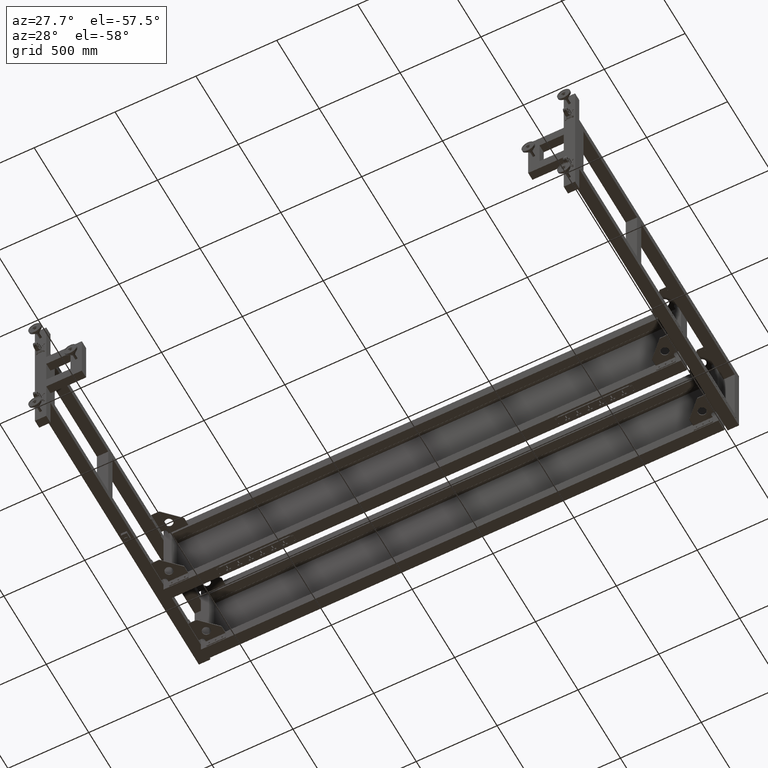
[diagram: clean part render]
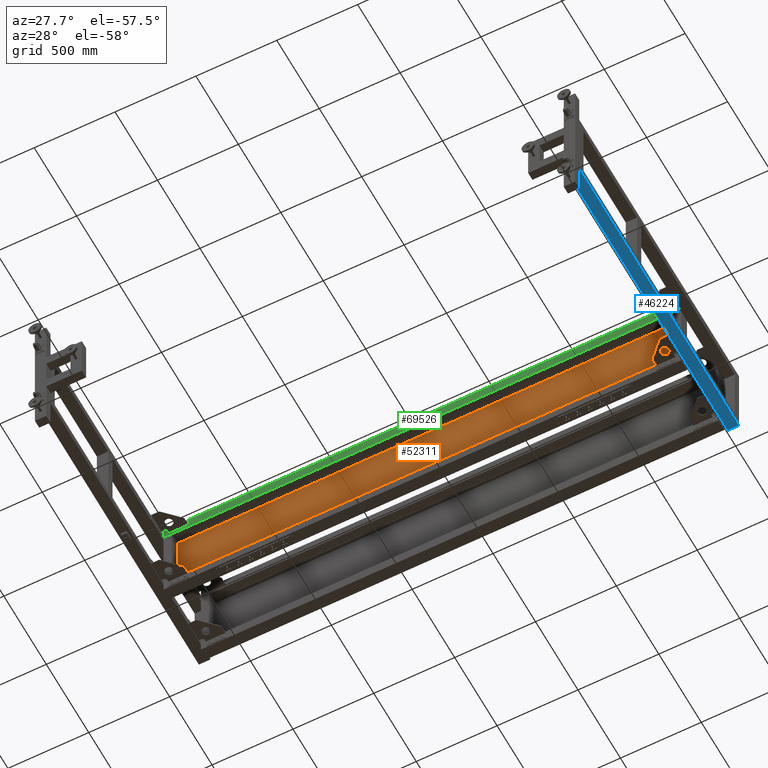
[diagram: same view with three faces highlighted in distinct colors, each labeled with its STEP entity id]
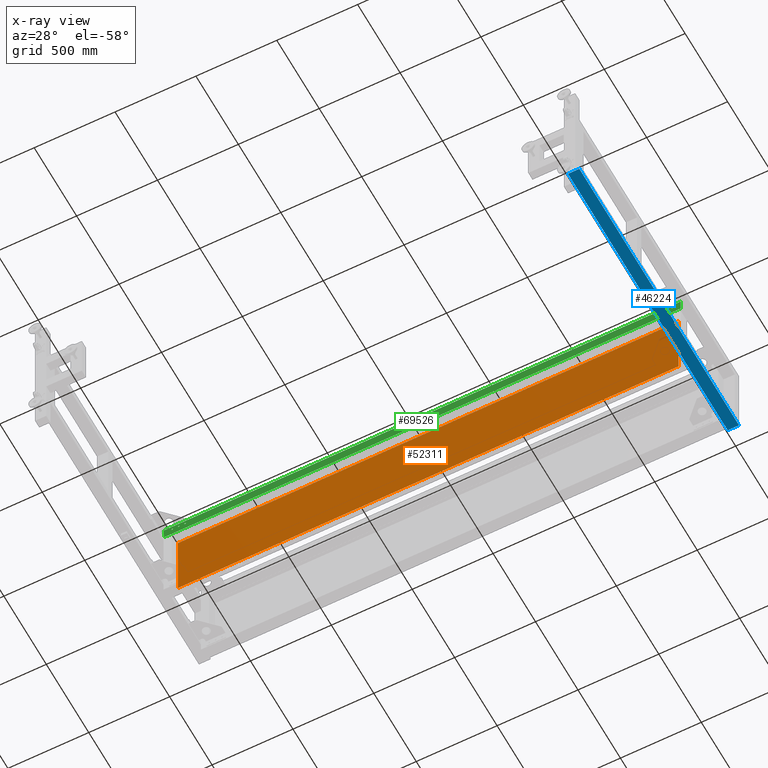
[diagram: x-ray of the same camera — body ghosted, the three highlighted faces saturated]
A machine part, auxiliary view with three faces highlighted in distinct colors.
The next image is the same camera in x-ray (body ghosted, the three faces saturated) — at least one of them is partly hidden behind the body in this view.
Their STEP definitions:

[orange] entity #52311 — the highlighted planar face has unit normal (-0, 1, -0).
#2364 = VECTOR ( 'NONE', #5119, 1000.000000000000000 ) ;
#4130 = CARTESIAN_POINT ( 'NONE',  ( 1880.317512562814727, 555.4410804020135402, -228.4899999999998954 ) ) ;
#5119 = DIRECTION ( 'NONE',  ( 0.000000000000000000, 1.000000000000000472E-15, 1.000000000000000000 ) ) ;
#8038 = LINE ( 'NONE', #35791, #36953 ) ;
#9986 = EDGE_LOOP ( 'NONE', ( #17693, #56692, #64233, #41364 ) ) ;
#10959 = VERTEX_POINT ( 'NONE', #4130 ) ;
#12293 = CARTESIAN_POINT ( 'NONE',  ( -1216.662487437185973, 555.4410804020128580, 228.4900000000081093 ) ) ;
#13058 = DIRECTION ( 'NONE',  ( -4.543257172554223644E-16, 1.000000000000000000, -1.000000000000000472E-15 ) ) ;
#17565 = AXIS2_PLACEMENT_3D ( 'NONE', #69133, #13058, #37993 ) ;
#17693 = ORIENTED_EDGE ( 'NONE', *, *, #19706, .T. ) ;
#19245 = VECTOR ( 'NONE', #37650, 1000.000000000000000 ) ;
#19644 = CARTESIAN_POINT ( 'NONE',  ( -516.6624874371852911, 555.4410804020124033, -228.4899999999998954 ) ) ;
#19706 = EDGE_CURVE ( 'NONE', #60006, #20192, #8038, .T. ) ;
#20192 = VERTEX_POINT ( 'NONE', #12293 ) ;
#25802 = LINE ( 'NONE', #19644, #19245 ) ;
#26622 = CARTESIAN_POINT ( 'NONE',  ( 1880.317512562814727, 555.4410804020139949, 228.4900000000081093 ) ) ;
#27123 = VECTOR ( 'NONE', #68221, 1000.000000000000000 ) ;
#30386 = EDGE_CURVE ( 'NONE', #10959, #60006, #55143, .T. ) ;
#30794 = EDGE_CURVE ( 'NONE', #60739, #20192, #67336, .T. ) ;
#35791 = CARTESIAN_POINT ( 'NONE',  ( 1880.317512562814727, 555.4410804020139949, 228.4900000000001228 ) ) ;
#36953 = VECTOR ( 'NONE', #53452, 1000.000000000000000 ) ;
#37650 = DIRECTION ( 'NONE',  ( 1.000000000000000000, 4.543257172554223644E-16, 0.000000000000000000 ) ) ;
#37993 = DIRECTION ( 'NONE',  ( -4.543257172554225407E-31, 1.000000000000000472E-15, 1.000000000000000000 ) ) ;
#41132 = CARTESIAN_POINT ( 'NONE',  ( -1216.662487437185973, 555.4410804020124033, -228.4899999999998954 ) ) ;
#41364 = ORIENTED_EDGE ( 'NONE', *, *, #30386, .T. ) ;
#44147 = FACE_OUTER_BOUND ( 'NONE', #9986, .T. ) ;
#44438 = EDGE_CURVE ( 'NONE', #60739, #10959, #25802, .T. ) ;
#46433 = CARTESIAN_POINT ( 'NONE',  ( -1216.662487437185973, 555.4410804020124033, -228.4899999999998954 ) ) ;
#52311 = ADVANCED_FACE ( 'NONE', ( #44147 ), #69536, .F. ) ;
#53452 = DIRECTION ( 'NONE',  ( -1.000000000000000000, -4.543257172554223644E-16, 0.000000000000000000 ) ) ;
#55143 = LINE ( 'NONE', #79325, #27123 ) ;
#56692 = ORIENTED_EDGE ( 'NONE', *, *, #30794, .F. ) ;
#60006 = VERTEX_POINT ( 'NONE', #26622 ) ;
#60739 = VERTEX_POINT ( 'NONE', #46433 ) ;
#64233 = ORIENTED_EDGE ( 'NONE', *, *, #44438, .T. ) ;
#67336 = LINE ( 'NONE', #41132, #2364 ) ;
#68221 = DIRECTION ( 'NONE',  ( -4.543257172554225407E-31, 1.000000000000000472E-15, 1.000000000000000000 ) ) ;
#69133 = CARTESIAN_POINT ( 'NONE',  ( 681.8275125628146043, 555.4410804020131991, 1.110223024625156540E-13 ) ) ;
#69536 = PLANE ( 'NONE',  #17565 ) ;
#79325 = CARTESIAN_POINT ( 'NONE',  ( 1880.317512562814727, 555.4410804020135402, -228.4899999999998954 ) ) ;

[blue] entity #46224 — the highlighted planar face has unit normal (-0, 0, -1).
#561 = CARTESIAN_POINT ( 'NONE',  ( 1931.827512562814491, 996.9410804020138812, -250.0000000000000000 ) ) ;
#665 = DIRECTION ( 'NONE',  ( 1.000000000000000000, 4.543257172554223644E-16, 0.000000000000000000 ) ) ;
#2159 = CARTESIAN_POINT ( 'NONE',  ( 1931.827512562813354, 919.4410804020146770, -250.0000000000000000 ) ) ;
#4952 = AXIS2_PLACEMENT_3D ( 'NONE', #37570, #62570, #31405 ) ;
#5999 = CARTESIAN_POINT ( 'NONE',  ( 2001.827512562813581, 926.9410804020150181, -250.0000000000000000 ) ) ;
#6549 = CARTESIAN_POINT ( 'NONE',  ( 2001.827512562814491, -844.5589195979879378, -250.0000000000000000 ) ) ;
#9145 = CARTESIAN_POINT ( 'NONE',  ( 2001.827512562814491, -844.5589195979879378, -250.0000000000000000 ) ) ;
#10015 = EDGE_CURVE ( 'NONE', #22193, #39708, #25361, .T. ) ;
#10831 = DIRECTION ( 'NONE',  ( 4.543257172554223644E-16, -1.000000000000000000, 0.000000000000000000 ) ) ;
#13853 = VERTEX_POINT ( 'NONE', #66420 ) ;
#16847 = VERTEX_POINT ( 'NONE', #42721 ) ;
#18367 = CARTESIAN_POINT ( 'NONE',  ( 1931.811469511922496, 926.9410804020150181, -250.0000000000000000 ) ) ;
#20278 = DIRECTION ( 'NONE',  ( 1.000000000000000000, 2.039995195632243709E-15, 0.000000000000000000 ) ) ;
#21960 = EDGE_CURVE ( 'NONE', #79229, #35881, #71431, .T. ) ;
#22193 = VERTEX_POINT ( 'NONE', #561 ) ;
#22805 = CARTESIAN_POINT ( 'NONE',  ( 1931.827512562814263, -844.5589195979879378, -250.0000000000000000 ) ) ;
#23177 = ORIENTED_EDGE ( 'NONE', *, *, #10015, .T. ) ;
#24087 = VECTOR ( 'NONE', #38427, 1000.000000000000000 ) ;
#24652 = VERTEX_POINT ( 'NONE', #6549 ) ;
#25361 = LINE ( 'NONE', #27359, #24087 ) ;
#27188 = CARTESIAN_POINT ( 'NONE',  ( 1931.811469511922496, 986.4410804020146770, -250.0000000000000000 ) ) ;
#27359 = CARTESIAN_POINT ( 'NONE',  ( 1931.827512562814491, 986.4410804020120622, -250.0000000000000000 ) ) ;
#28389 = DIRECTION ( 'NONE',  ( 1.454325717255422245E-15, -1.000000000000000000, -0.000000000000000000 ) ) ;
#31271 = ORIENTED_EDGE ( 'NONE', *, *, #49709, .F. ) ;
#31405 = DIRECTION ( 'NONE',  ( -1.000000000000000000, -4.543257172554223644E-16, 0.000000000000000000 ) ) ;
#35543 = CARTESIAN_POINT ( 'NONE',  ( 2001.827512562814491, 1036.441080402012176, -250.0000000000000000 ) ) ;
#35881 = VERTEX_POINT ( 'NONE', #2159 ) ;
#35956 = DIRECTION ( 'NONE',  ( 1.000000000000000000, 4.543257172554223644E-16, 0.000000000000000000 ) ) ;
#36172 = CARTESIAN_POINT ( 'NONE',  ( 1931.827512562815400, -844.5589195979879378, -250.0000000000000000 ) ) ;
#37570 = CARTESIAN_POINT ( 'NONE',  ( 2001.827512562814491, -844.5589195979879378, -250.0000000000000000 ) ) ;
#38427 = DIRECTION ( 'NONE',  ( -4.543257172554223644E-16, 1.000000000000000000, 0.000000000000000000 ) ) ;
#39708 = VERTEX_POINT ( 'NONE', #56662 ) ;
#39864 = VECTOR ( 'NONE', #20278, 1000.000000000000000 ) ;
#40298 = CARTESIAN_POINT ( 'NONE',  ( 2001.827512562813581, 919.4410804020147907, -250.0000000000000000 ) ) ;
#42721 = CARTESIAN_POINT ( 'NONE',  ( 2001.827512562814491, 1036.441080402012176, -250.0000000000000000 ) ) ;
#43052 = DIRECTION ( 'NONE',  ( -4.543257172554223644E-16, 1.000000000000000000, 0.000000000000000000 ) ) ;
#43973 = VECTOR ( 'NONE', #35956, 1000.000000000000000 ) ;
#46224 = ADVANCED_FACE ( 'NONE', ( #69500 ), #68698, .T. ) ;
#46352 = ORIENTED_EDGE ( 'NONE', *, *, #58743, .F. ) ;
#46464 = CARTESIAN_POINT ( 'NONE',  ( 1931.811469511922496, 919.4410804020146770, -250.0000000000000000 ) ) ;
#48269 = VECTOR ( 'NONE', #665, 1000.000000000000000 ) ;
#49709 = EDGE_CURVE ( 'NONE', #68454, #24652, #57496, .T. ) ;
#53603 = LINE ( 'NONE', #35543, #43973 ) ;
#54633 = LINE ( 'NONE', #36172, #59397 ) ;
#56242 = ORIENTED_EDGE ( 'NONE', *, *, #80947, .F. ) ;
#56310 = VECTOR ( 'NONE', #43052, 1000.000000000000000 ) ;
#56662 = CARTESIAN_POINT ( 'NONE',  ( 1931.827512562814491, 1036.441080402012176, -250.0000000000000000 ) ) ;
#57496 = LINE ( 'NONE', #9145, #70836 ) ;
#58743 = EDGE_CURVE ( 'NONE', #22193, #13853, #54633, .T. ) ;
#59397 = VECTOR ( 'NONE', #10831, 1000.000000000000000 ) ;
#59522 = LINE ( 'NONE', #27188, #70945 ) ;
#62570 = DIRECTION ( 'NONE',  ( -0.000000000000000000, 0.000000000000000000, -1.000000000000000000 ) ) ;
#62752 = EDGE_LOOP ( 'NONE', ( #56242, #31271, #68041, #76575, #77377, #80850, #46352, #23177, #69286 ) ) ;
#62961 = DIRECTION ( 'NONE',  ( -4.543257172554223644E-16, 1.000000000000000000, 0.000000000000000000 ) ) ;
#66420 = CARTESIAN_POINT ( 'NONE',  ( 1931.827512562814491, 926.9410804020150181, -250.0000000000000000 ) ) ;
#67807 = VECTOR ( 'NONE', #62961, 1000.000000000000000 ) ;
#67910 = LINE ( 'NONE', #74461, #67807 ) ;
#68041 = ORIENTED_EDGE ( 'NONE', *, *, #68192, .T. ) ;
#68192 = EDGE_CURVE ( 'NONE', #68454, #35881, #67910, .T. ) ;
#68454 = VERTEX_POINT ( 'NONE', #22805 ) ;
#68606 = EDGE_CURVE ( 'NONE', #75687, #13853, #70232, .T. ) ;
#68698 = PLANE ( 'NONE',  #4952 ) ;
#69286 = ORIENTED_EDGE ( 'NONE', *, *, #75472, .T. ) ;
#69500 = FACE_OUTER_BOUND ( 'NONE', #62752, .T. ) ;
#70232 = LINE ( 'NONE', #5999, #48269 ) ;
#70836 = VECTOR ( 'NONE', #76321, 1000.000000000000000 ) ;
#70945 = VECTOR ( 'NONE', #28389, 1000.000000000000000 ) ;
#71431 = LINE ( 'NONE', #40298, #39864 ) ;
#71838 = EDGE_CURVE ( 'NONE', #75687, #79229, #59522, .T. ) ;
#74461 = CARTESIAN_POINT ( 'NONE',  ( 1931.827512562814263, -844.5589195979879378, -250.0000000000000000 ) ) ;
#75472 = EDGE_CURVE ( 'NONE', #39708, #16847, #53603, .T. ) ;
#75687 = VERTEX_POINT ( 'NONE', #18367 ) ;
#76321 = DIRECTION ( 'NONE',  ( 1.000000000000000000, 4.543257172554223644E-16, 0.000000000000000000 ) ) ;
#76575 = ORIENTED_EDGE ( 'NONE', *, *, #21960, .F. ) ;
#77377 = ORIENTED_EDGE ( 'NONE', *, *, #71838, .F. ) ;
#79229 = VERTEX_POINT ( 'NONE', #46464 ) ;
#79937 = CARTESIAN_POINT ( 'NONE',  ( 2001.827512562814491, -844.5589195979879378, -250.0000000000000000 ) ) ;
#80340 = LINE ( 'NONE', #79937, #56310 ) ;
#80850 = ORIENTED_EDGE ( 'NONE', *, *, #68606, .T. ) ;
#80947 = EDGE_CURVE ( 'NONE', #24652, #16847, #80340, .T. ) ;

[green] entity #69526 — the highlighted planar face has unit normal (-0, 1, 0).
#717 = CIRCLE ( 'NONE', #67382, 4.499999999999948486 ) ;
#1585 = FACE_BOUND ( 'NONE', #69472, .T. ) ;
#1618 = EDGE_CURVE ( 'NONE', #76624, #31581, #27577, .T. ) ;
#1635 = AXIS2_PLACEMENT_3D ( 'NONE', #60700, #80337, #49219 ) ;
#1952 = DIRECTION ( 'NONE',  ( -1.000000000000000000, 0.000000000000000000, 0.000000000000000000 ) ) ;
#2659 = DIRECTION ( 'NONE',  ( -1.000000000000000000, 0.000000000000000000, 0.000000000000000000 ) ) ;
#3987 = DIRECTION ( 'NONE',  ( 1.000000000000000000, 4.543257172554223644E-16, 0.000000000000000000 ) ) ;
#5644 = CIRCLE ( 'NONE', #16084, 4.499999999999948486 ) ;
#6035 = AXIS2_PLACEMENT_3D ( 'NONE', #14942, #19872, #2659 ) ;
#6247 = CIRCLE ( 'NONE', #34971, 4.499999999999948486 ) ;
#6859 = EDGE_CURVE ( 'NONE', #49840, #8764, #49281, .T. ) ;
#6917 = CARTESIAN_POINT ( 'NONE',  ( 1878.327512562814491, 486.9410804020118917, 274.9999999999998863 ) ) ;
#7295 = CARTESIAN_POINT ( 'NONE',  ( 1929.827512562814718, 486.9410804020120622, 229.9999999999998295 ) ) ;
#7794 = DIRECTION ( 'NONE',  ( -1.000000000000000000, 0.000000000000000000, 0.000000000000000000 ) ) ;
#8764 = VERTEX_POINT ( 'NONE', #56622 ) ;
#8883 = CARTESIAN_POINT ( 'NONE',  ( 1878.327512562814491, 486.9410804020118917, 274.9999999999998863 ) ) ;
#8998 = DIRECTION ( 'NONE',  ( 0.000000000000000000, -1.000000000000000000, -2.999999999999999839E-15 ) ) ;
#9320 = AXIS2_PLACEMENT_3D ( 'NONE', #63335, #19533, #14218 ) ;
#11240 = DIRECTION ( 'NONE',  ( -4.543257172554223644E-16, 1.000000000000000000, 2.999999999999999839E-15 ) ) ;
#11284 = ORIENTED_EDGE ( 'NONE', *, *, #56477, .F. ) ;
#12213 = VECTOR ( 'NONE', #19736, 1000.000000000000000 ) ;
#13002 = VERTEX_POINT ( 'NONE', #24531 ) ;
#14218 = DIRECTION ( 'NONE',  ( 1.000000000000000000, 0.000000000000000000, 0.000000000000000000 ) ) ;
#14422 = ORIENTED_EDGE ( 'NONE', *, *, #45192, .T. ) ;
#14708 = VECTOR ( 'NONE', #74309, 1000.000000000000000 ) ;
#14724 = VERTEX_POINT ( 'NONE', #47779 ) ;
#14808 = CIRCLE ( 'NONE', #39627, 4.499999999999948486 ) ;
#14942 = CARTESIAN_POINT ( 'NONE',  ( -1134.672487437185964, 486.9410804020108117, 274.9999999999998863 ) ) ;
#16084 = AXIS2_PLACEMENT_3D ( 'NONE', #64859, #51355, #21044 ) ;
#16118 = ORIENTED_EDGE ( 'NONE', *, *, #40767, .F. ) ;
#19533 = DIRECTION ( 'NONE',  ( -4.543257172554223644E-16, 1.000000000000000000, 2.999999999999999839E-15 ) ) ;
#19679 = ORIENTED_EDGE ( 'NONE', *, *, #6859, .F. ) ;
#19736 = DIRECTION ( 'NONE',  ( 0.000000000000000000, 2.999999999999999839E-15, -1.000000000000000000 ) ) ;
#19872 = DIRECTION ( 'NONE',  ( 0.000000000000000000, -1.000000000000000000, -2.999999999999999839E-15 ) ) ;
#20396 = FACE_BOUND ( 'NONE', #61668, .T. ) ;
#20642 = ORIENTED_EDGE ( 'NONE', *, *, #68046, .F. ) ;
#21044 = DIRECTION ( 'NONE',  ( 1.000000000000000000, 0.000000000000000000, 0.000000000000000000 ) ) ;
#21616 = DIRECTION ( 'NONE',  ( 1.000000000000000000, 0.000000000000000000, 0.000000000000000000 ) ) ;
#22012 = FACE_BOUND ( 'NONE', #65782, .T. ) ;
#22791 = LINE ( 'NONE', #41593, #59929 ) ;
#24364 = CARTESIAN_POINT ( 'NONE',  ( -566.1724874371851683, 486.9410804020107548, 299.9999999999998863 ) ) ;
#24531 = CARTESIAN_POINT ( 'NONE',  ( 1833.827512562814718, 486.9410804020118917, 274.9999999999998863 ) ) ;
#25161 = EDGE_LOOP ( 'NONE', ( #69382, #33786, #14422, #67098 ) ) ;
#25175 = EDGE_CURVE ( 'NONE', #76337, #50425, #717, .T. ) ;
#25882 = EDGE_CURVE ( 'NONE', #70676, #32886, #74618, .T. ) ;
#26365 = AXIS2_PLACEMENT_3D ( 'NONE', #34880, #35274, #61500 ) ;
#26666 = EDGE_LOOP ( 'NONE', ( #41800, #11284 ) ) ;
#27577 = CIRCLE ( 'NONE', #9320, 4.499999999999948486 ) ;
#27678 = DIRECTION ( 'NONE',  ( 0.000000000000000000, -1.000000000000000000, -2.999999999999999839E-15 ) ) ;
#27772 = DIRECTION ( 'NONE',  ( -1.000000000000000000, 0.000000000000000000, 0.000000000000000000 ) ) ;
#27979 = ORIENTED_EDGE ( 'NONE', *, *, #25175, .T. ) ;
#28338 = CARTESIAN_POINT ( 'NONE',  ( -1179.172487437185964, 486.9410804020108117, 274.9999999999998863 ) ) ;
#28811 = DIRECTION ( 'NONE',  ( 1.000000000000000000, 0.000000000000000000, 0.000000000000000000 ) ) ;
#29206 = ORIENTED_EDGE ( 'NONE', *, *, #68847, .T. ) ;
#29304 = DIRECTION ( 'NONE',  ( 1.000000000000000000, 4.543257172554223644E-16, 0.000000000000000000 ) ) ;
#29420 = DIRECTION ( 'NONE',  ( 0.000000000000000000, -1.000000000000000000, -2.999999999999999839E-15 ) ) ;
#29691 = DIRECTION ( 'NONE',  ( 0.000000000000000000, -1.000000000000000000, -2.999999999999999839E-15 ) ) ;
#30956 = AXIS2_PLACEMENT_3D ( 'NONE', #64674, #8998, #7794 ) ;
#31581 = VERTEX_POINT ( 'NONE', #66346 ) ;
#31850 = DIRECTION ( 'NONE',  ( -4.543257172554223644E-16, 1.000000000000000000, 2.999999999999999839E-15 ) ) ;
#31960 = EDGE_CURVE ( 'NONE', #70676, #14724, #49329, .T. ) ;
#32402 = VERTEX_POINT ( 'NONE', #70385 ) ;
#32582 = CIRCLE ( 'NONE', #78390, 4.499999999999948486 ) ;
#32886 = VERTEX_POINT ( 'NONE', #71485 ) ;
#33786 = ORIENTED_EDGE ( 'NONE', *, *, #25882, .T. ) ;
#34000 = EDGE_CURVE ( 'NONE', #60001, #51638, #14808, .T. ) ;
#34345 = EDGE_CURVE ( 'NONE', #32402, #13002, #5644, .T. ) ;
#34880 = CARTESIAN_POINT ( 'NONE',  ( -1174.672487437186192, 486.9410804020108117, 274.9999999999998863 ) ) ;
#34971 = AXIS2_PLACEMENT_3D ( 'NONE', #6917, #31850, #21616 ) ;
#35274 = DIRECTION ( 'NONE',  ( 0.000000000000000000, -1.000000000000000000, -2.999999999999999839E-15 ) ) ;
#36062 = EDGE_CURVE ( 'NONE', #31581, #76624, #70917, .T. ) ;
#36399 = CIRCLE ( 'NONE', #61273, 4.499999999999948486 ) ;
#39627 = AXIS2_PLACEMENT_3D ( 'NONE', #40471, #29691, #27772 ) ;
#40416 = PLANE ( 'NONE',  #68073 ) ;
#40471 = CARTESIAN_POINT ( 'NONE',  ( -1174.672487437186192, 486.9410804020108117, 274.9999999999998863 ) ) ;
#40767 = EDGE_CURVE ( 'NONE', #8764, #49840, #77921, .T. ) ;
#41058 = CARTESIAN_POINT ( 'NONE',  ( -1266.172487437185964, 486.9410804020108117, 299.9999999999998863 ) ) ;
#41217 = FACE_BOUND ( 'NONE', #55367, .T. ) ;
#41593 = CARTESIAN_POINT ( 'NONE',  ( -566.1724874371851683, 486.9410804020109254, 229.9999999999998295 ) ) ;
#41662 = ORIENTED_EDGE ( 'NONE', *, *, #34345, .T. ) ;
#41800 = ORIENTED_EDGE ( 'NONE', *, *, #34000, .F. ) ;
#42092 = CARTESIAN_POINT ( 'NONE',  ( -1214.672487437185964, 486.9410804020108117, 274.9999999999998863 ) ) ;
#42171 = VERTEX_POINT ( 'NONE', #66105 ) ;
#44498 = DIRECTION ( 'NONE',  ( -1.362977151766267009E-30, 2.999999999999999839E-15, -1.000000000000000000 ) ) ;
#45192 = EDGE_CURVE ( 'NONE', #32886, #54368, #22791, .T. ) ;
#47473 = CARTESIAN_POINT ( 'NONE',  ( -1219.172487437186192, 486.9410804020108117, 274.9999999999998863 ) ) ;
#47766 = FACE_OUTER_BOUND ( 'NONE', #25161, .T. ) ;
#47779 = CARTESIAN_POINT ( 'NONE',  ( 1929.827512562814718, 486.9410804020118348, 299.9999999999998863 ) ) ;
#48364 = CARTESIAN_POINT ( 'NONE',  ( 1882.827512562814718, 486.9410804020118917, 274.9999999999998863 ) ) ;
#49219 = DIRECTION ( 'NONE',  ( 1.000000000000000000, 0.000000000000000000, 0.000000000000000000 ) ) ;
#49281 = CIRCLE ( 'NONE', #59752, 4.499999999999948486 ) ;
#49329 = LINE ( 'NONE', #24364, #14708 ) ;
#49540 = CARTESIAN_POINT ( 'NONE',  ( 1929.827512562814718, 486.9410804020120622, 229.9999999999998295 ) ) ;
#49840 = VERTEX_POINT ( 'NONE', #66028 ) ;
#50392 = ORIENTED_EDGE ( 'NONE', *, *, #78051, .T. ) ;
#50425 = VERTEX_POINT ( 'NONE', #65322 ) ;
#51355 = DIRECTION ( 'NONE',  ( -4.543257172554223644E-16, 1.000000000000000000, 2.999999999999999839E-15 ) ) ;
#51638 = VERTEX_POINT ( 'NONE', #28338 ) ;
#51879 = CARTESIAN_POINT ( 'NONE',  ( -1134.672487437185964, 486.9410804020108117, 274.9999999999998863 ) ) ;
#51896 = VERTEX_POINT ( 'NONE', #47473 ) ;
#53072 = DIRECTION ( 'NONE',  ( 1.000000000000000000, 0.000000000000000000, 0.000000000000000000 ) ) ;
#54368 = VERTEX_POINT ( 'NONE', #49540 ) ;
#55367 = EDGE_LOOP ( 'NONE', ( #56699, #20642 ) ) ;
#56477 = EDGE_CURVE ( 'NONE', #51638, #60001, #61676, .T. ) ;
#56622 = CARTESIAN_POINT ( 'NONE',  ( -1139.172487437185964, 486.9410804020108117, 274.9999999999998863 ) ) ;
#56699 = ORIENTED_EDGE ( 'NONE', *, *, #65146, .F. ) ;
#57256 = VECTOR ( 'NONE', #44498, 1000.000000000000000 ) ;
#57755 = CARTESIAN_POINT ( 'NONE',  ( -1170.172487437185964, 486.9410804020108117, 274.9999999999998863 ) ) ;
#59752 = AXIS2_PLACEMENT_3D ( 'NONE', #51879, #27678, #1952 ) ;
#59929 = VECTOR ( 'NONE', #29304, 1000.000000000000000 ) ;
#60001 = VERTEX_POINT ( 'NONE', #57755 ) ;
#60069 = FACE_BOUND ( 'NONE', #26666, .T. ) ;
#60700 = CARTESIAN_POINT ( 'NONE',  ( 1798.327512562814945, 486.9410804020118348, 274.9999999999998863 ) ) ;
#61273 = AXIS2_PLACEMENT_3D ( 'NONE', #42092, #29420, #61380 ) ;
#61380 = DIRECTION ( 'NONE',  ( -1.000000000000000000, 0.000000000000000000, 0.000000000000000000 ) ) ;
#61500 = DIRECTION ( 'NONE',  ( -1.000000000000000000, 0.000000000000000000, 0.000000000000000000 ) ) ;
#61668 = EDGE_LOOP ( 'NONE', ( #29206, #41662 ) ) ;
#61676 = CIRCLE ( 'NONE', #26365, 4.499999999999948486 ) ;
#63335 = CARTESIAN_POINT ( 'NONE',  ( 1798.327512562814945, 486.9410804020118348, 274.9999999999998863 ) ) ;
#64296 = CARTESIAN_POINT ( 'NONE',  ( 1802.827512562814491, 486.9410804020118348, 274.9999999999998863 ) ) ;
#64674 = CARTESIAN_POINT ( 'NONE',  ( -1214.672487437185964, 486.9410804020108117, 274.9999999999998863 ) ) ;
#64859 = CARTESIAN_POINT ( 'NONE',  ( 1838.327512562814945, 486.9410804020118917, 274.9999999999998863 ) ) ;
#65146 = EDGE_CURVE ( 'NONE', #42171, #51896, #78053, .T. ) ;
#65322 = CARTESIAN_POINT ( 'NONE',  ( 1873.827512562814718, 486.9410804020118917, 274.9999999999998863 ) ) ;
#65407 = EDGE_CURVE ( 'NONE', #14724, #54368, #76877, .T. ) ;
#65782 = EDGE_LOOP ( 'NONE', ( #50392, #27979 ) ) ;
#65787 = FACE_BOUND ( 'NONE', #79097, .T. ) ;
#66028 = CARTESIAN_POINT ( 'NONE',  ( -1130.172487437186192, 486.9410804020108117, 274.9999999999998863 ) ) ;
#66105 = CARTESIAN_POINT ( 'NONE',  ( -1210.172487437185964, 486.9410804020108117, 274.9999999999998863 ) ) ;
#66346 = CARTESIAN_POINT ( 'NONE',  ( 1793.827512562815173, 486.9410804020118348, 274.9999999999998863 ) ) ;
#67098 = ORIENTED_EDGE ( 'NONE', *, *, #65407, .F. ) ;
#67382 = AXIS2_PLACEMENT_3D ( 'NONE', #8883, #70685, #53072 ) ;
#68046 = EDGE_CURVE ( 'NONE', #51896, #42171, #36399, .T. ) ;
#68073 = AXIS2_PLACEMENT_3D ( 'NONE', #72753, #72346, #3987 ) ;
#68847 = EDGE_CURVE ( 'NONE', #13002, #32402, #32582, .T. ) ;
#69382 = ORIENTED_EDGE ( 'NONE', *, *, #31960, .F. ) ;
#69472 = EDGE_LOOP ( 'NONE', ( #79265, #69509 ) ) ;
#69509 = ORIENTED_EDGE ( 'NONE', *, *, #1618, .T. ) ;
#69526 = ADVANCED_FACE ( 'NONE', ( #1585, #20396, #22012, #47766, #41217, #60069, #65787 ), #40416, .F. ) ;
#70385 = CARTESIAN_POINT ( 'NONE',  ( 1842.827512562814718, 486.9410804020118917, 274.9999999999998863 ) ) ;
#70676 = VERTEX_POINT ( 'NONE', #41058 ) ;
#70685 = DIRECTION ( 'NONE',  ( -4.543257172554223644E-16, 1.000000000000000000, 2.999999999999999839E-15 ) ) ;
#70917 = CIRCLE ( 'NONE', #1635, 4.499999999999948486 ) ;
#71485 = CARTESIAN_POINT ( 'NONE',  ( -1266.172487437185964, 486.9410804020109822, 229.9999999999998295 ) ) ;
#72346 = DIRECTION ( 'NONE',  ( -4.543257172554223644E-16, 1.000000000000000000, 2.999999999999999839E-15 ) ) ;
#72753 = CARTESIAN_POINT ( 'NONE',  ( -566.1724874371851683, 486.9410804020109254, 229.9999999999998295 ) ) ;
#74309 = DIRECTION ( 'NONE',  ( 1.000000000000000000, 4.543257172554223644E-16, 0.000000000000000000 ) ) ;
#74618 = LINE ( 'NONE', #75852, #12213 ) ;
#75852 = CARTESIAN_POINT ( 'NONE',  ( -1266.172487437185964, 486.9410804020109822, 229.9999999999998295 ) ) ;
#76337 = VERTEX_POINT ( 'NONE', #48364 ) ;
#76624 = VERTEX_POINT ( 'NONE', #64296 ) ;
#76877 = LINE ( 'NONE', #7295, #57256 ) ;
#77921 = CIRCLE ( 'NONE', #6035, 4.499999999999948486 ) ;
#78051 = EDGE_CURVE ( 'NONE', #50425, #76337, #6247, .T. ) ;
#78053 = CIRCLE ( 'NONE', #30956, 4.499999999999948486 ) ;
#78390 = AXIS2_PLACEMENT_3D ( 'NONE', #79603, #11240, #28811 ) ;
#79097 = EDGE_LOOP ( 'NONE', ( #19679, #16118 ) ) ;
#79265 = ORIENTED_EDGE ( 'NONE', *, *, #36062, .T. ) ;
#79603 = CARTESIAN_POINT ( 'NONE',  ( 1838.327512562814945, 486.9410804020118917, 274.9999999999998863 ) ) ;
#80337 = DIRECTION ( 'NONE',  ( -4.543257172554223644E-16, 1.000000000000000000, 2.999999999999999839E-15 ) ) ;